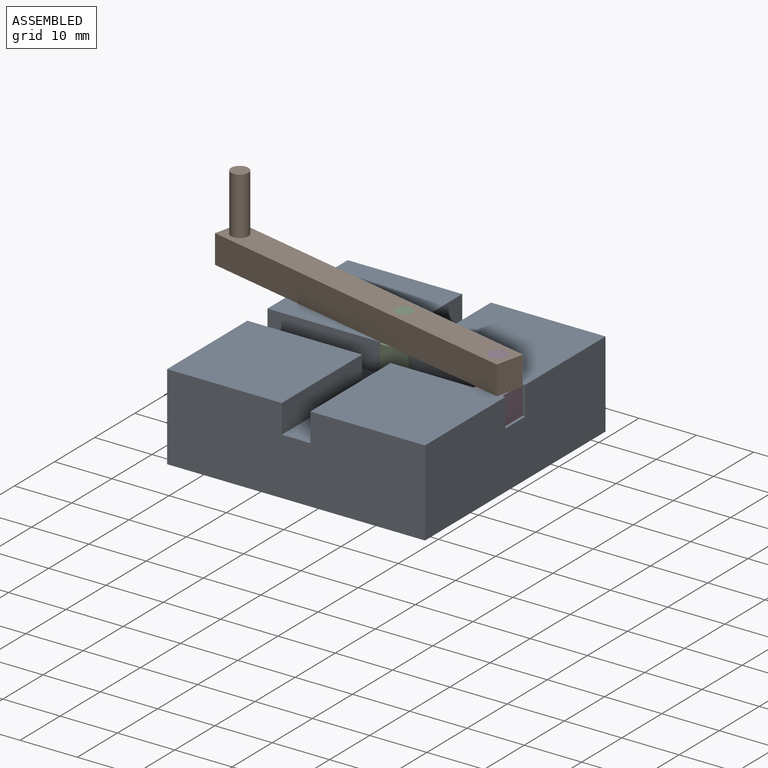
[diagram: assembled view]
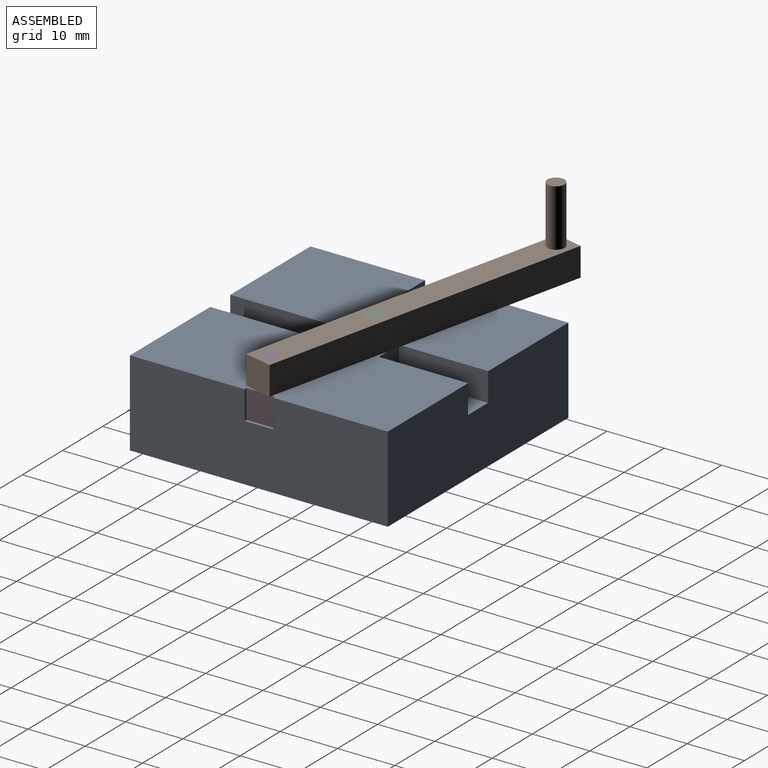
[diagram: assembled view, second angle]
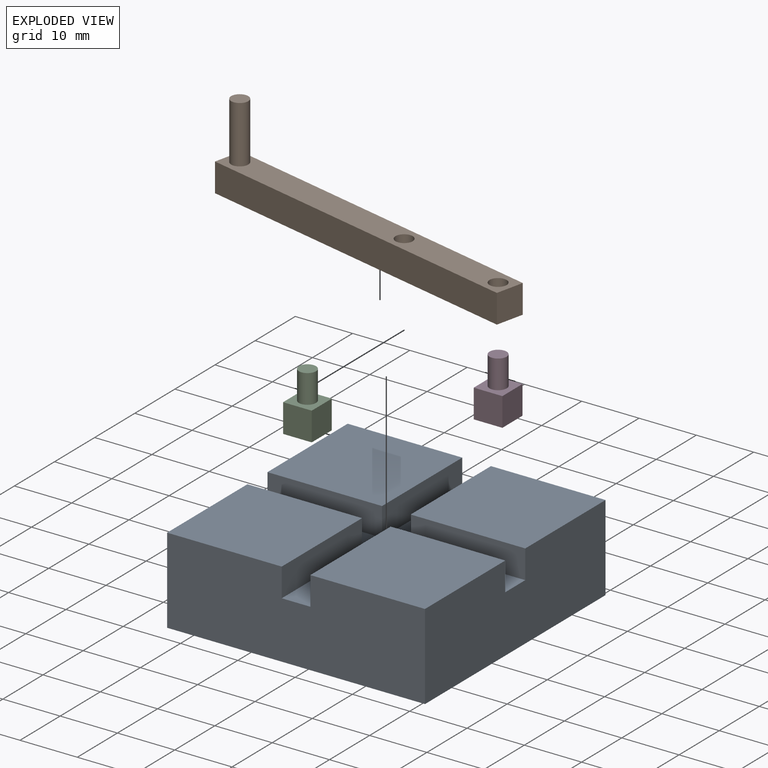
[diagram: exploded view]
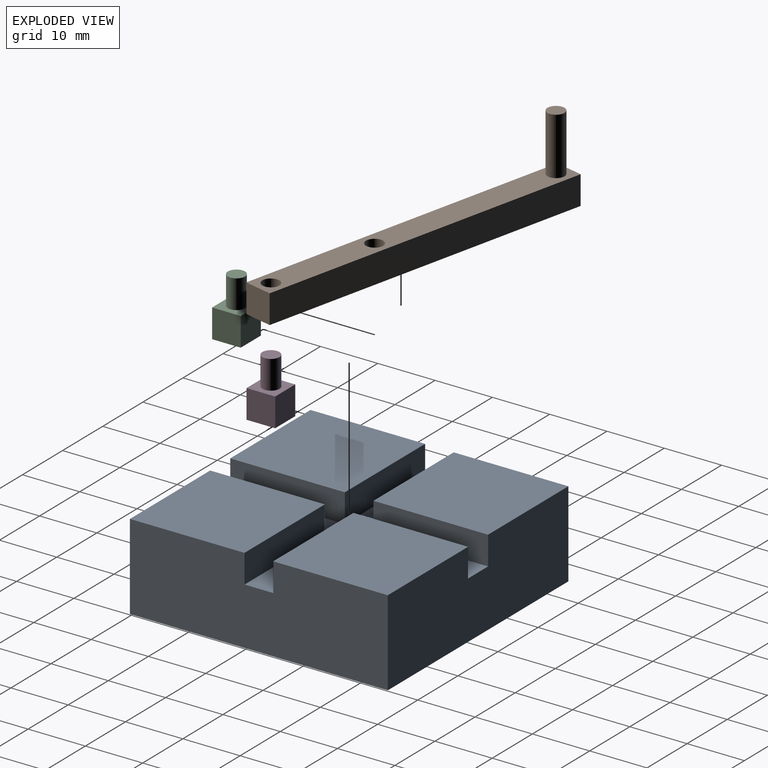
[diagram: exploded view, second angle]
ASSEMBLY  parts=4 mates=4
PART A: 18 faces, bbox 45x45x15 mm
  f0: plane 45x45mm, normal (0,0,1), area 425mm2, adj f1,f2,f3,f4,f6,f7,f9,f10
  f1: plane 45x15mm, normal (1,0,0), area 650mm2, adj f0,f2,f4,f5,f13,f14,f15,f17
  f2: plane 45x15mm, normal (0,1,0), area 650mm2, adj f0,f1,f3,f5,f7,f8,f12,f14
  f3: plane 45x15mm, normal (-1,0,0), area 650mm2, adj f0,f2,f4,f5,f6,f8,f10,f11
  f4: plane 45x15mm, normal (0,-1,0), area 650mm2, adj f0,f1,f3,f5,f9,f11,f16,f17
  f5: plane 45x45mm, normal (0,0,-1), area 2025mm2, adj f1,f2,f3,f4
  f6: plane 20x5mm, normal (0,-1,0), area 100mm2, adj f0,f3,f7,f8
  f7: plane 20x5mm, normal (1,0,0), area 100mm2, adj f0,f2,f6,f8
  f8: plane 20x20mm, normal (0,0,1), area 400mm2, adj f2,f3,f6,f7
  f9: plane 20x5mm, normal (1,0,0), area 100mm2, adj f0,f4,f10,f11
  f10: plane 20x5mm, normal (0,1,0), area 100mm2, adj f0,f3,f9,f11
  f11: plane 20x20mm, normal (0,0,1), area 400mm2, adj f3,f4,f9,f10
  f12: plane 20x5mm, normal (-1,0,0), area 100mm2, adj f0,f2,f13,f14
  f13: plane 20x5mm, normal (0,-1,0), area 100mm2, adj f0,f1,f12,f14
  f14: plane 20x20mm, normal (0,0,1), area 400mm2, adj f1,f2,f12,f13
  f15: plane 20x5mm, normal (0,1,0), area 100mm2, adj f0,f1,f16,f17
  f16: plane 20x5mm, normal (-1,0,0), area 100mm2, adj f0,f4,f15,f17
  f17: plane 20x20mm, normal (0,0,1), area 400mm2, adj f1,f4,f15,f16
PART B: 10 faces, bbox 5x60x15 mm
  f0: plane 60x5mm, normal (1,0,0), area 300mm2, adj f1,f3,f6,f7
  f1: plane 5x5mm, normal (0,1,0), area 25mm2, adj f0,f2,f6,f7
  f2: plane 60x5mm, normal (-1,0,0), area 300mm2, adj f1,f3,f6,f7
  f3: plane 5x5mm, normal (0,-1,0), area 25mm2, adj f0,f2,f6,f7
  f4: cylinder r=1.5mm len=5mm, axis (0,0,-1), area 47.1mm2, adj f6,f7
  f5: cylinder r=1.5mm len=5mm, axis (0,0,-1), area 47.1mm2, adj f6,f7
  f6: plane 60x5mm, normal (0,0,1), area 278.8mm2, adj f0,f1,f2,f3,f4,f5,f8
  f7: plane 60x5mm, normal (0,0,-1), area 285.9mm2, adj f0,f1,f2,f3,f4,f5
  f8: cylinder r=1.5mm len=10mm, axis (0,0,-1), area 94.2mm2, adj f6,f9
  f9: plane 3x3mm, normal (0,0,1), area 7.1mm2, adj f8
PART C: 8 faces, bbox 5x5x10 mm
  f0: plane 5x5mm, normal (-1,0,0), area 25mm2, adj f1,f3,f4,f5
  f1: plane 5x5mm, normal (0,-1,0), area 25mm2, adj f0,f2,f4,f5
  f2: plane 5x5mm, normal (1,0,0), area 25mm2, adj f1,f3,f4,f5
  f3: plane 5x5mm, normal (0,1,0), area 25mm2, adj f0,f2,f4,f5
  f4: plane 5x5mm, normal (0,0,1), area 17.9mm2, adj f0,f1,f2,f3,f6
  f5: plane 5x5mm, normal (0,0,-1), area 25mm2, adj f0,f1,f2,f3
  f6: cylinder r=1.5mm len=5mm, axis (0,0,-1), area 47.1mm2, adj f4,f7
  f7: plane 3x3mm, normal (0,0,1), area 7.1mm2, adj f6
PART D: same geometry as C
PLACE A t=(-10.61,-16.39,5.31)mm fixed
PLACE B rot(axis=(0,0,-1),102.8deg) t=(-10.61,-11.96,5.31)mm
PLACE C t=(-10.61,-31.96,5.31)mm
PLACE D t=(8.9,-36.39,5.31)mm
MATE slider C.f1 <-> A.f4  axis (0,-1,0) through (-10.61,-14.46,15.31)mm
MATE revolute B.f4 <-> C.f6  axis (0,0,1) through (-10.61,-11.96,25.31)mm
MATE slider D.f0 <-> A.f3  axis (-1,0,0) through (6.4,-16.39,15.31)mm
MATE revolute B.f5 <-> D.f6  axis (0,0,1) through (8.9,-16.39,25.31)mm
